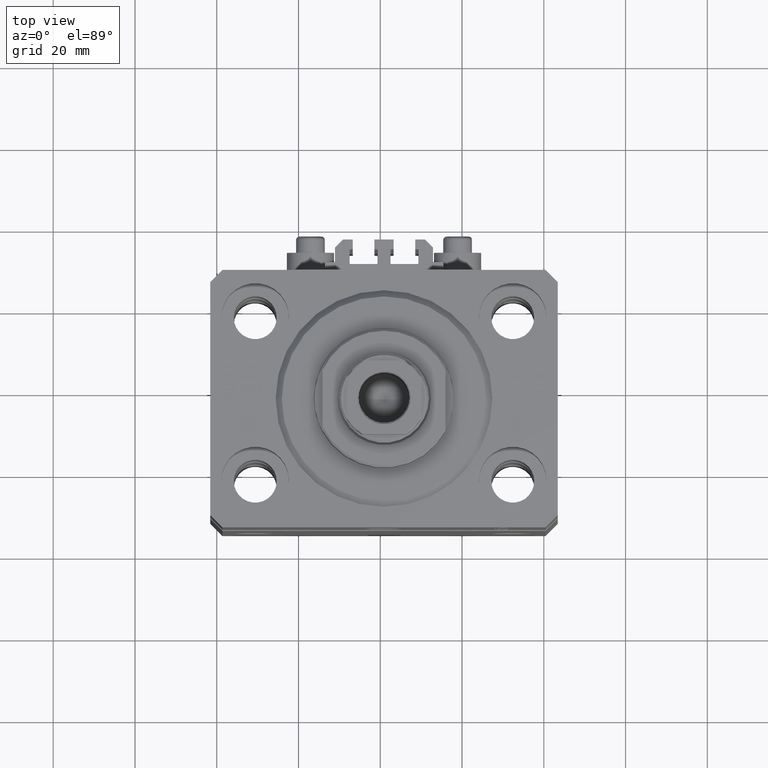
[diagram: clean part render]
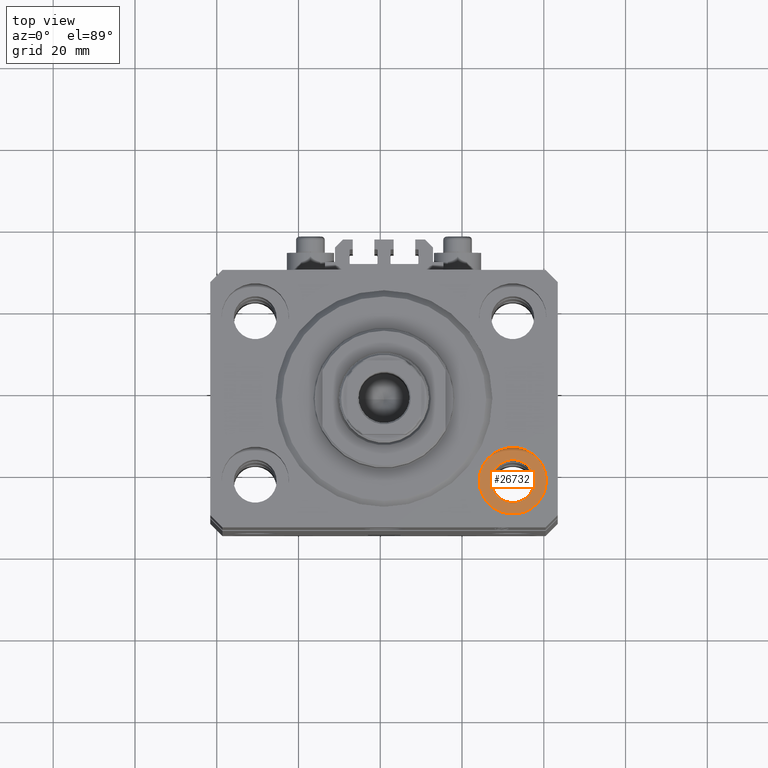
[diagram: same view with one face highlighted and labeled with its STEP entity id]
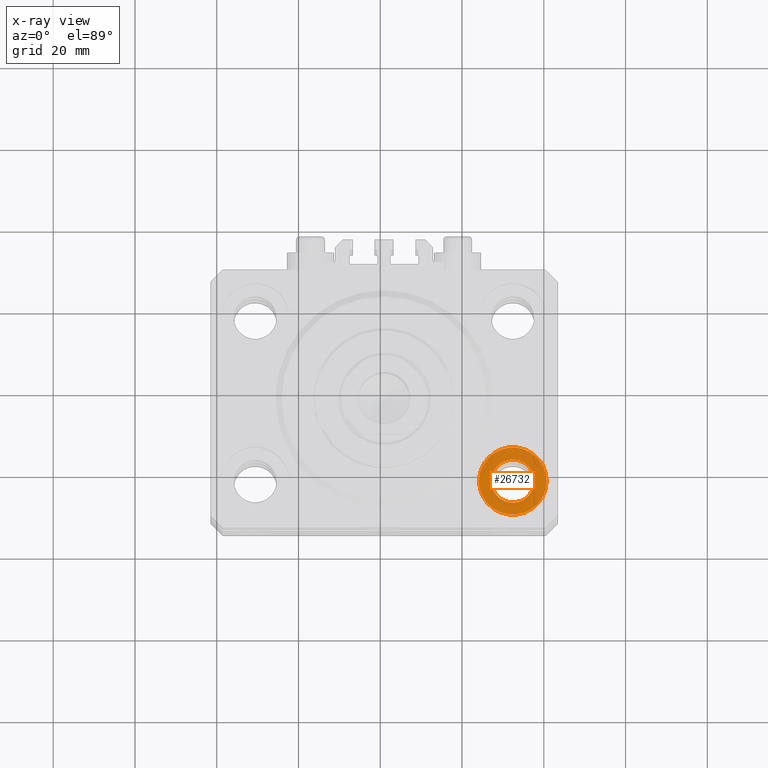
[diagram: x-ray of the same camera — body ghosted, the highlighted face saturated]
A machine part, top view. The second image highlights one B-rep face of the part: STEP entity #26732.
The next image is the same camera in x-ray: the body ghosted, the highlighted face saturated — about 0% of this face is hidden behind the body in this view.
In plain terms, the highlighted planar face has unit normal (0, 0, 1).
Its self-contained STEP definition (entity closure, byte-faithful):
#2139 = CARTESIAN_POINT ( 'NONE',  ( 31.50000000000000000, -20.00000000000000000, -11.00000000000000000 ) ) ;
#3225 = CIRCLE ( 'NONE', #9476, 5.249999999999997335 ) ;
#4152 = EDGE_CURVE ( 'NONE', #7515, #20142, #25801, .T. ) ;
#6456 = DIRECTION ( 'NONE',  ( 1.000000000000000000, 0.000000000000000000, 0.000000000000000000 ) ) ;
#6641 = EDGE_CURVE ( 'NONE', #20142, #7515, #3225, .T. ) ;
#6723 = CARTESIAN_POINT ( 'NONE',  ( 39.74999999999999289, -20.00000000000000000, -11.00000000000000000 ) ) ;
#6744 = DIRECTION ( 'NONE',  ( 1.000000000000000000, 0.000000000000000000, 0.000000000000000000 ) ) ;
#7515 = VERTEX_POINT ( 'NONE', #11807 ) ;
#9476 = AXIS2_PLACEMENT_3D ( 'NONE', #21082, #43936, #28145 ) ;
#11807 = CARTESIAN_POINT ( 'NONE',  ( 26.25000000000000355, -20.00000000000000000, -11.00000000000000000 ) ) ;
#12756 = CARTESIAN_POINT ( 'NONE',  ( 31.50000000000000000, -20.00000000000000000, -11.00000000000000000 ) ) ;
#13514 = CARTESIAN_POINT ( 'NONE',  ( 31.50000000000000000, -20.00000000000000000, -11.00000000000000000 ) ) ;
#15178 = CARTESIAN_POINT ( 'NONE',  ( 31.50000000000000000, -20.00000000000000000, -11.00000000000000000 ) ) ;
#15462 = ORIENTED_EDGE ( 'NONE', *, *, #4152, .F. ) ;
#15922 = FACE_OUTER_BOUND ( 'NONE', #21909, .T. ) ;
#17426 = AXIS2_PLACEMENT_3D ( 'NONE', #15178, #33888, #30483 ) ;
#19803 = CIRCLE ( 'NONE', #26022, 8.249999999999992895 ) ;
#20058 = DIRECTION ( 'NONE',  ( 0.000000000000000000, 0.000000000000000000, 1.000000000000000000 ) ) ;
#20082 = ORIENTED_EDGE ( 'NONE', *, *, #32663, .T. ) ;
#20142 = VERTEX_POINT ( 'NONE', #33080 ) ;
#20378 = CARTESIAN_POINT ( 'NONE',  ( 23.25000000000000355, -20.00000000000000000, -11.00000000000000000 ) ) ;
#21082 = CARTESIAN_POINT ( 'NONE',  ( 31.50000000000000000, -20.00000000000000000, -11.00000000000000000 ) ) ;
#21909 = EDGE_LOOP ( 'NONE', ( #20082, #36446 ) ) ;
#22020 = AXIS2_PLACEMENT_3D ( 'NONE', #12756, #20058, #27585 ) ;
#23213 = FACE_BOUND ( 'NONE', #43184, .T. ) ;
#23551 = VERTEX_POINT ( 'NONE', #20378 ) ;
#24930 = DIRECTION ( 'NONE',  ( 0.000000000000000000, 0.000000000000000000, 1.000000000000000000 ) ) ;
#25801 = CIRCLE ( 'NONE', #28143, 5.249999999999997335 ) ;
#26022 = AXIS2_PLACEMENT_3D ( 'NONE', #13514, #24930, #6456 ) ;
#26732 = ADVANCED_FACE ( 'NONE', ( #23213, #15922 ), #38286, .T. ) ;
#26842 = ORIENTED_EDGE ( 'NONE', *, *, #6641, .F. ) ;
#27585 = DIRECTION ( 'NONE',  ( 1.000000000000000000, 0.000000000000000000, -0.000000000000000000 ) ) ;
#28143 = AXIS2_PLACEMENT_3D ( 'NONE', #2139, #28642, #6744 ) ;
#28145 = DIRECTION ( 'NONE',  ( 1.000000000000000000, 0.000000000000000000, 0.000000000000000000 ) ) ;
#28642 = DIRECTION ( 'NONE',  ( 0.000000000000000000, 0.000000000000000000, 1.000000000000000000 ) ) ;
#29069 = VERTEX_POINT ( 'NONE', #6723 ) ;
#30483 = DIRECTION ( 'NONE',  ( 1.000000000000000000, 0.000000000000000000, 0.000000000000000000 ) ) ;
#32663 = EDGE_CURVE ( 'NONE', #29069, #23551, #39196, .T. ) ;
#33080 = CARTESIAN_POINT ( 'NONE',  ( 36.75000000000000000, -20.00000000000000000, -11.00000000000000000 ) ) ;
#33888 = DIRECTION ( 'NONE',  ( 0.000000000000000000, 0.000000000000000000, 1.000000000000000000 ) ) ;
#36446 = ORIENTED_EDGE ( 'NONE', *, *, #41781, .T. ) ;
#38286 = PLANE ( 'NONE',  #22020 ) ;
#39196 = CIRCLE ( 'NONE', #17426, 8.249999999999992895 ) ;
#41781 = EDGE_CURVE ( 'NONE', #23551, #29069, #19803, .T. ) ;
#43184 = EDGE_LOOP ( 'NONE', ( #26842, #15462 ) ) ;
#43936 = DIRECTION ( 'NONE',  ( 0.000000000000000000, 0.000000000000000000, 1.000000000000000000 ) ) ;